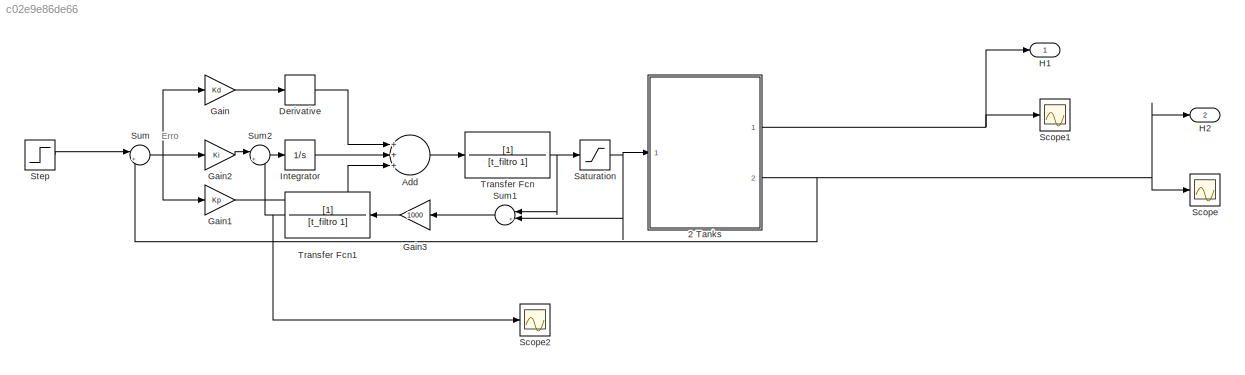
MODEL slx_c02e9e86de66
KIND model
CONFIG AbsTol = auto
CONFIG EnableMultiTasking = off
CONFIG FixedStep = 1e-3
CONFIG MaxStep = auto
CONFIG MinStep = auto
CONFIG RelTol = 1e-3
CONFIG SampleTimeConstraint = Unconstrained
CONFIG Solver = ode4
CONFIG SolverName = ode4
CONFIG StartTime = 0.0
CONFIG StopTime = tempo_simu
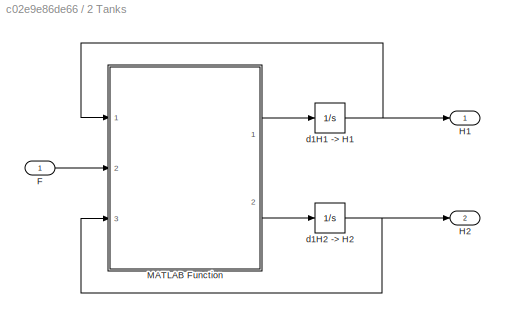
BLOCK [SubSystem] 2 Tanks
  Ports = [1, 2]
  RequestExecContextInheritance = off
BLOCK [Inport] 2 Tanks/F
  IconDisplay = Port number
BLOCK [Outport] 2 Tanks/H1
  IconDisplay = Port number
BLOCK [Outport] 2 Tanks/H2
  IconDisplay = Port number
  Port = 2
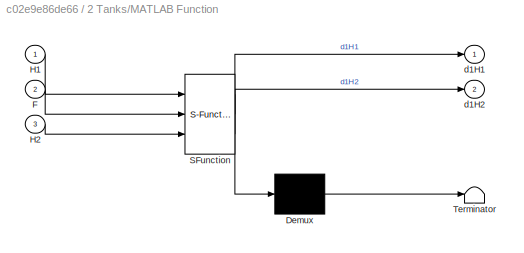
BLOCK [SubSystem] 2 Tanks/MATLAB Function
  ErrorFcn = Stateflow.Translate.translate
  PermitHierarchicalResolution = ExplicitOnly
  Ports = [3, 2]
  RequestExecContextInheritance = off
  SFBlockType = MATLAB Function
  TreatAsAtomicUnit = on
BLOCK [Demux] 2 Tanks/MATLAB Function/ Demux 
  Outputs = 1
  Ports = [1, 1]
BLOCK [S-Function] 2 Tanks/MATLAB Function/ SFunction 
  EnableBusSupport = on
  FunctionName = sf_sfun
  Parameters = Area1,Area2,Area4,Fnom,Hmax,Qe,Rmax,g,pho
  PortCounts = [3 3]
  Ports = [3, 3]
  SFcnIsStateOwnerBlock = off
  SFunctionDeploymentMode = off
  Tag = Stateflow S-Function cobem_simulink_alpha1_0 2
BLOCK [Terminator] 2 Tanks/MATLAB Function/ Terminator 
BLOCK [Inport] 2 Tanks/MATLAB Function/F
  IconDisplay = Port number
  Port = 2
BLOCK [Inport] 2 Tanks/MATLAB Function/H1
  IconDisplay = Port number
BLOCK [Inport] 2 Tanks/MATLAB Function/H2
  IconDisplay = Port number
  Port = 3
BLOCK [Outport] 2 Tanks/MATLAB Function/d1H1
  IconDisplay = Port number
BLOCK [Outport] 2 Tanks/MATLAB Function/d1H2
  IconDisplay = Port number
  Port = 2
BLOCK [Integrator] 2 Tanks/d1H1 -> H1
  InitialCondition = h10
  LimitOutput = on
  LowerSaturationLimit = 0
  Ports = [1, 1]
BLOCK [Integrator] 2 Tanks/d1H2 -> H2
  InitialCondition = h20
  LimitOutput = on
  LowerSaturationLimit = 0
  Ports = [1, 1]
BLOCK [Sum] Add
  InputSameDT = off
  Inputs = +++
  OutDataTypeStr = Inherit: Inherit via internal rule
  Ports = [3, 1]
  SaturateOnIntegerOverflow = off
BLOCK [Derivative] Derivative
BLOCK [Gain] Gain
  Gain = Kd
  OutDataTypeStr = Inherit: Inherit via internal rule
  ParamDataTypeStr = Inherit: Inherit via internal rule
  SaturateOnIntegerOverflow = off
BLOCK [Gain] Gain1
  Gain = Kp
  OutDataTypeStr = Inherit: Inherit via internal rule
  ParamDataTypeStr = Inherit: Inherit via internal rule
  SaturateOnIntegerOverflow = off
BLOCK [Gain] Gain2
  Gain = Ki
  OutDataTypeStr = Inherit: Inherit via internal rule
  ParamDataTypeStr = Inherit: Inherit via internal rule
  SaturateOnIntegerOverflow = off
BLOCK [Gain] Gain3
  Gain = 1000
  OutDataTypeStr = Inherit: Inherit via internal rule
  ParamDataTypeStr = Inherit: Inherit via internal rule
  SaturateOnIntegerOverflow = off
BLOCK [Outport] H1
  IconDisplay = Port number
  SignalName = saida_sys
BLOCK [Outport] H2
  IconDisplay = Port number
  Port = 2
  SignalName = saida_sys
BLOCK [Integrator] Integrator
  Ports = [1, 1]
BLOCK [Saturate] Saturation
  InputPortMap = u0
  LowerLimit = 0
  Ports = [1, 1]
  UpperLimit = 60
BLOCK [Scope] Scope
  Floating = off
  NumInputPorts = 1
  Ports = [1]
  ScopeSpecificationString = Simulink.scopes.TimeScopeBlockCfg('CurrentConfiguration', extmgr.ConfigurationSet(extmgr.Configuration('Core','General UI',true),extmgr.Configuration('Core','Source UI',true),extmgr.Configuration('Sources','WiredSimulink',true,'DataLoggingMaxPoints','20000'),extmgr.Configuration('Visuals','Time Domain',true,'SerializedDisplays',{struct('MinYLimReal','-0.18494','MaxYLimReal','2.73668','YLabelReal',...<+1387ch>
BLOCK [Scope] Scope1
  Floating = off
  NumInputPorts = 1
  Ports = [1]
  ScopeSpecificationString = Simulink.scopes.TimeScopeBlockCfg('CurrentConfiguration', extmgr.ConfigurationSet(extmgr.Configuration('Core','General UI',true),extmgr.Configuration('Core','Source UI',true),extmgr.Configuration('Sources','WiredSimulink',true,'DataLoggingVariableName','ScopeData1','DataLoggingMaxPoints','20000'),extmgr.Configuration('Visuals','Time Domain',true,'SerializedDisplays',{struct('MinYLimReal','-2.89744...<+1430ch>
BLOCK [Scope] Scope2
  Floating = off
  NumInputPorts = 1
  Ports = [1]
  ScopeSpecificationString = Simulink.scopes.TimeScopeBlockCfg('CurrentConfiguration', extmgr.ConfigurationSet(extmgr.Configuration('Core','General UI',true),extmgr.Configuration('Core','Source UI',true),extmgr.Configuration('Sources','WiredSimulink',true,'DataLoggingVariableName','ScopeData1','DataLoggingMaxPoints','20000'),extmgr.Configuration('Visuals','Time Domain',true,'SerializedDisplays',{struct('MinYLimReal','-476.946...<+1442ch>
BLOCK [Step] Step
  After = 0.8
  Before = 0.5
  SampleTime = 0
  Time = 0
BLOCK [Sum] Sum
  IconShape = round
  InputSameDT = off
  Inputs = |+-
  OutDataTypeStr = Inherit: Inherit via internal rule
  Ports = [2, 1]
  SaturateOnIntegerOverflow = off
BLOCK [Sum] Sum1
  IconShape = round
  InputSameDT = off
  Inputs = |+-
  OutDataTypeStr = Inherit: Inherit via internal rule
  Ports = [2, 1]
  SaturateOnIntegerOverflow = off
BLOCK [Sum] Sum2
  IconShape = round
  InputSameDT = off
  Inputs = |+-
  OutDataTypeStr = Inherit: Inherit via internal rule
  Ports = [2, 1]
  SaturateOnIntegerOverflow = off
BLOCK [TransferFcn] Transfer Fcn
  Denominator = [t_filtro 1]
BLOCK [TransferFcn] Transfer Fcn1
  Denominator = [t_filtro 1]
ANNOTATION (root): Erro
LINE 2 Tanks/F:1 -> 2 Tanks/MATLAB Function:2
LINE 2 Tanks/MATLAB Function:1 -> 2 Tanks/d1H1 -> H1:1
LINE 2 Tanks/MATLAB Function:2 -> 2 Tanks/d1H2 -> H2:1
NET 2 Tanks/d1H1 -> H1:1 -> 2 Tanks/H1:1, 2 Tanks/MATLAB Function:1
NET 2 Tanks/d1H2 -> H2:1 -> 2 Tanks/H2:1, 2 Tanks/MATLAB Function:3
NET 2 Tanks:1 -> H1:1, Scope1:1
NET 2 Tanks:2 -> H2:1, Scope:1, Sum:2
LINE Add:1 -> Transfer Fcn:1
LINE Derivative:1 -> Add:1
LINE Gain1:1 -> Add:3
LINE Gain2:1 -> Sum2:1
LINE Gain3:1 -> Transfer Fcn1:1
LINE Gain:1 -> Derivative:1
LINE Integrator:1 -> Add:2
NET Saturation:1 -> 2 Tanks:1, Sum1:2
LINE Step:1 -> Sum:1
LINE Sum1:1 -> Gain3:1
LINE Sum2:1 -> Integrator:1
NET Sum:1 -> Gain1:1, Gain2:1, Gain:1
NET Transfer Fcn1:1 -> Scope2:1, Sum2:2
NET Transfer Fcn:1 -> Saturation:1, Sum1:1
note: NET lines group one-source signal fan-out (src -> all destinations, sorted); 1:1 wires keep LINE
CHART 2 Tanks/MATLAB Function states=1 transitions=1
  STATE_LABEL 'eML_blk_kernel()'
  STATE_LABEL 'SCRIPT:\nfunction [d1H1, d1H2] = TwoTanks(H1, F, H2, pho, Fnom, Area1, Area4, Hmax, Area2, g, Qe, Rmax)\n\n  % Parametros - d1H1\n    num1 = Qe;\n    den1 = pho*Area1*(Fnom^3);\n    num2 = Area2*sqrt(2*g);\n    den2 = Area1;\n  \n  % Parametros - d1H2\n    num3 = Area2*sqrt(2*g)*Hmax^2;\n    den3 = pi*Rmax^2;\n    num4 = Area4*sqrt(2*g)*Hmax^2;\n    den4 = pi*Rmax^2;\n  \n  % Sistema Dinâmico\n    d1H1 = (num1/de...<+108ch>'
